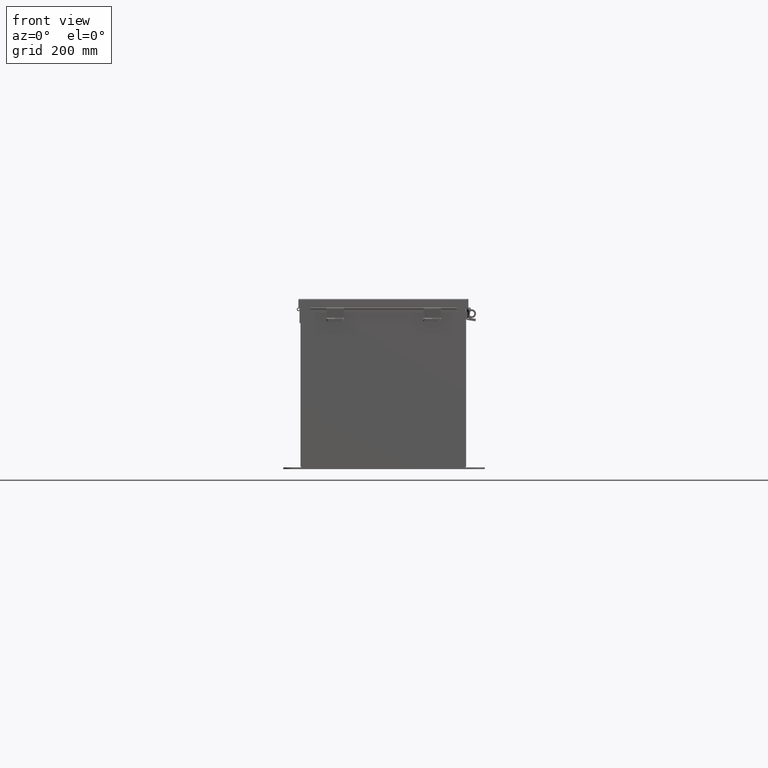
[diagram: clean part render]
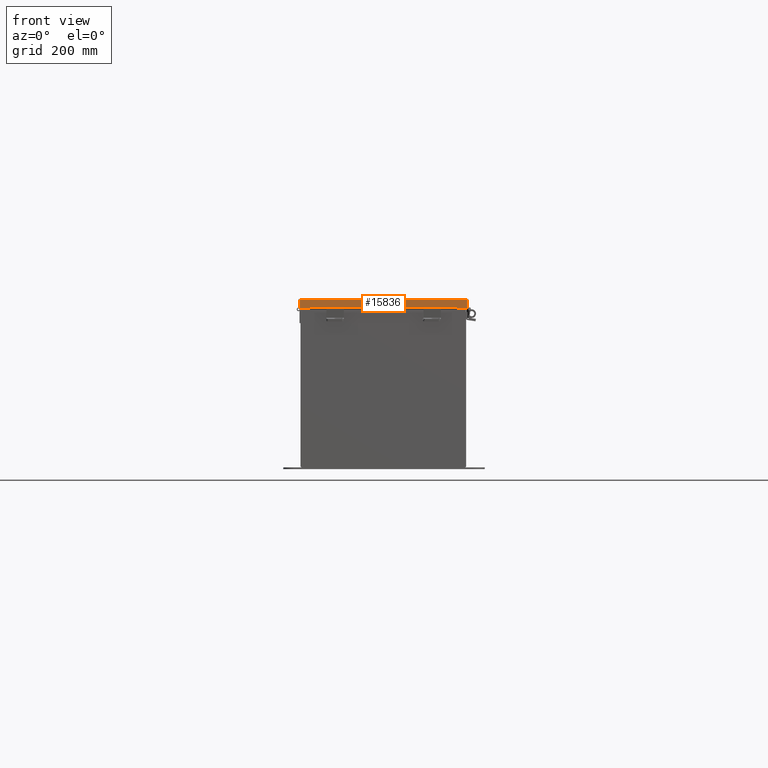
[diagram: same view with one face highlighted and labeled with its STEP entity id]
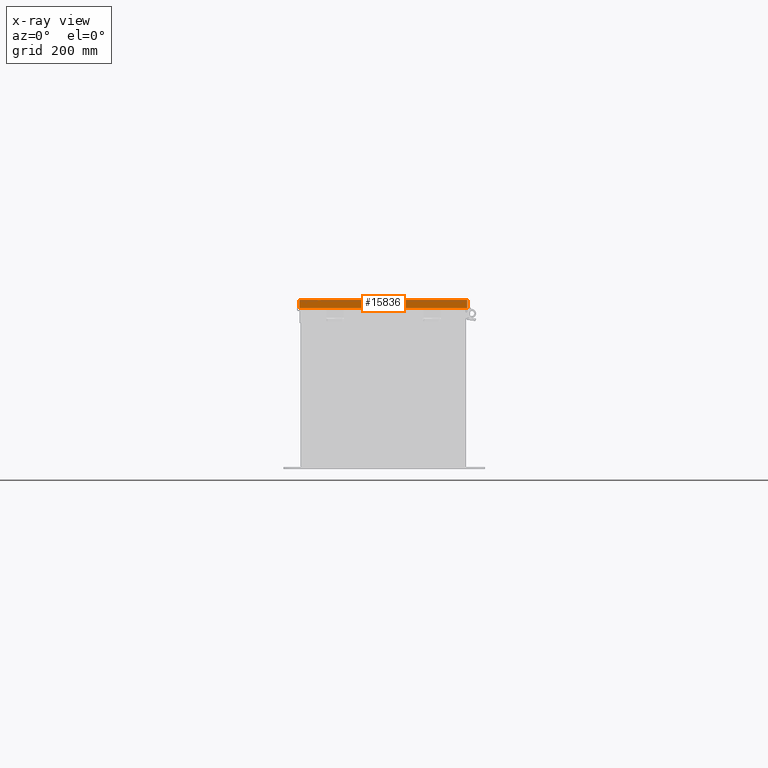
[diagram: x-ray of the same camera — body ghosted, the highlighted face saturated]
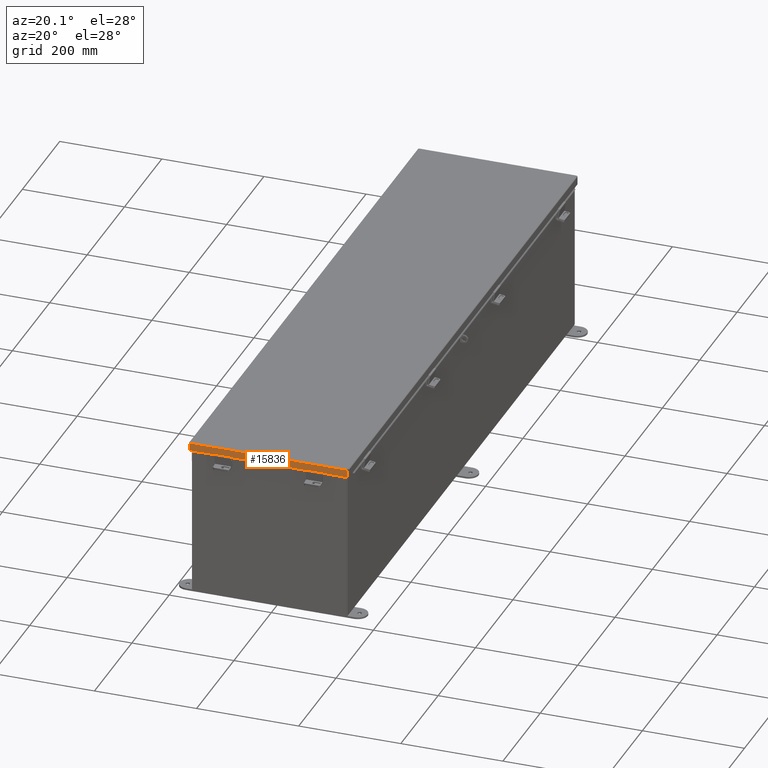
[diagram: same view with one face highlighted and labeled with its STEP entity id]
A machine part, front view. The second image highlights one B-rep face of the part: STEP entity #15836.
The next image is the same camera in x-ray: the body ghosted, the highlighted face saturated — about 0% of this face is hidden behind the body in this view.
A second angle (auxiliary view) of the same face is appended — the face is thin or edge-on in the first view.
In plain terms, the highlighted planar face has unit normal (0, 1, -0).
Its self-contained STEP definition (entity closure, byte-faithful):
#1164 = LINE ( 'NONE', #2461, #13535 ) ;
#1614 = CARTESIAN_POINT ( 'NONE',  ( -6.156250000000019500, -24.15625000000000000, 0.01299999999999792100 ) ) ;
#1997 = CARTESIAN_POINT ( 'NONE',  ( -6.074478932188158700, -24.15625000000000000, 0.01299999999999792100 ) ) ;
#2048 = CARTESIAN_POINT ( 'NONE',  ( 5.324478932188159600, -24.15625000000000000, 0.5967115427318804300 ) ) ;
#2461 = CARTESIAN_POINT ( 'NONE',  ( 6.074478932188163100, -24.15625000000000000, 0.0000000000000000000 ) ) ;
#3398 = DIRECTION ( 'NONE',  ( -2.189427245366025900E-030, 1.000000000000000000, 0.0000000000000000000 ) ) ;
#4485 = DIRECTION ( 'NONE',  ( -1.000000000000000000, 2.041515825637060300E-030, -0.0000000000000000000 ) ) ;
#4904 = EDGE_CURVE ( 'NONE', #22072, #36351, #10363, .T. ) ;
#6211 = ORIENTED_EDGE ( 'NONE', *, *, #16837, .T. ) ;
#7456 = DIRECTION ( 'NONE',  ( 0.0000000000000000000, -2.803970088048592400E-013, -1.000000000000000000 ) ) ;
#7561 = CARTESIAN_POINT ( 'NONE',  ( -5.324478932188156000, -24.15625000000000400, 0.6122999999999982900 ) ) ;
#8197 = EDGE_CURVE ( 'NONE', #36351, #9181, #29160, .T. ) ;
#8655 = EDGE_CURVE ( 'NONE', #22072, #25981, #29131, .T. ) ;
#9181 = VERTEX_POINT ( 'NONE', #2048 ) ;
#10096 = CARTESIAN_POINT ( 'NONE',  ( 6.074478932188163100, -24.15625000000000000, 0.01299999999999792100 ) ) ;
#10363 = LINE ( 'NONE', #7561, #31830 ) ;
#10523 = DIRECTION ( 'NONE',  ( -1.000000000000000000, 2.044213024013791200E-030, 5.546899479522196600E-018 ) ) ;
#10625 = CARTESIAN_POINT ( 'NONE',  ( 5.324478932188159600, -24.15625000000001100, 0.5967115427318804300 ) ) ;
#10678 = CARTESIAN_POINT ( 'NONE',  ( 3.201384367575308500E-018, -24.15625000000000000, 0.6122999999999982900 ) ) ;
#11739 = CARTESIAN_POINT ( 'NONE',  ( 0.0000000000000000000, -24.15625000000000000, -2.185478394931410600E-015 ) ) ;
#12472 = AXIS2_PLACEMENT_3D ( 'NONE', #11739, #3398, #23016 ) ;
#13159 = VERTEX_POINT ( 'NONE', #1997 ) ;
#13279 = EDGE_CURVE ( 'NONE', #15872, #23003, #31214, .T. ) ;
#13363 = ORIENTED_EDGE ( 'NONE', *, *, #15689, .F. ) ;
#13453 = VECTOR ( 'NONE', #18802, 39.37007874015748100 ) ;
#13535 = VECTOR ( 'NONE', #24917, 39.37007874015748100 ) ;
#13652 = CARTESIAN_POINT ( 'NONE',  ( -5.324478932188156000, -24.15625000000000000, 0.5967115427318782100 ) ) ;
#14889 = CARTESIAN_POINT ( 'NONE',  ( 5.324478932188158700, -24.15625000000000000, 0.6123000000000005100 ) ) ;
#14934 = VERTEX_POINT ( 'NONE', #10096 ) ;
#14939 = EDGE_CURVE ( 'NONE', #14934, #13159, #35995, .T. ) ;
#15058 = CARTESIAN_POINT ( 'NONE',  ( -6.074478932188158700, -24.15625000000000000, 0.0000000000000000000 ) ) ;
#15689 = EDGE_CURVE ( 'NONE', #9181, #23003, #28009, .T. ) ;
#15836 = ADVANCED_FACE ( 'NONE', ( #23665 ), #28487, .F. ) ;
#15872 = VERTEX_POINT ( 'NONE', #17494 ) ;
#16715 = VECTOR ( 'NONE', #34748, 39.37007874015748100 ) ;
#16837 = EDGE_CURVE ( 'NONE', #14934, #15872, #1164, .T. ) ;
#17338 = ORIENTED_EDGE ( 'NONE', *, *, #4904, .F. ) ;
#17494 = CARTESIAN_POINT ( 'NONE',  ( 6.074478932188163100, -24.15625000000000000, 0.6123000000000005100 ) ) ;
#18802 = DIRECTION ( 'NONE',  ( 1.000000000000000000, -2.041515825637060300E-030, -0.0000000000000000000 ) ) ;
#19041 = CARTESIAN_POINT ( 'NONE',  ( -5.324478932188156900, -24.15625000000001100, 0.5967115427318782100 ) ) ;
#19360 = ORIENTED_EDGE ( 'NONE', *, *, #13279, .T. ) ;
#19407 = DIRECTION ( 'NONE',  ( -1.000000000000000000, 2.044213024013791200E-030, 5.546899479522196600E-018 ) ) ;
#19719 = VECTOR ( 'NONE', #33066, 39.37007874015748100 ) ;
#20009 = EDGE_CURVE ( 'NONE', #13159, #25981, #24214, .T. ) ;
#20837 = VECTOR ( 'NONE', #10523, 39.37007874015748100 ) ;
#22072 = VERTEX_POINT ( 'NONE', #35513 ) ;
#23003 = VERTEX_POINT ( 'NONE', #14889 ) ;
#23016 = DIRECTION ( 'NONE',  ( 0.0000000000000000000, 0.0000000000000000000, 1.000000000000000000 ) ) ;
#23665 = FACE_OUTER_BOUND ( 'NONE', #30240, .T. ) ;
#23800 = VECTOR ( 'NONE', #19407, 39.37007874015748100 ) ;
#24214 = LINE ( 'NONE', #15058, #16715 ) ;
#24917 = DIRECTION ( 'NONE',  ( 0.0000000000000000000, 0.0000000000000000000, 1.000000000000000000 ) ) ;
#25981 = VERTEX_POINT ( 'NONE', #30359 ) ;
#27714 = CARTESIAN_POINT ( 'NONE',  ( 3.201384367575308500E-018, -24.15625000000000000, 0.6122999999999982900 ) ) ;
#27941 = ORIENTED_EDGE ( 'NONE', *, *, #8197, .F. ) ;
#28009 = LINE ( 'NONE', #10625, #19719 ) ;
#28487 = PLANE ( 'NONE',  #12472 ) ;
#28496 = VECTOR ( 'NONE', #4485, 39.37007874015748100 ) ;
#29131 = LINE ( 'NONE', #10678, #20837 ) ;
#29160 = LINE ( 'NONE', #19041, #13453 ) ;
#30240 = EDGE_LOOP ( 'NONE', ( #17338, #35405, #32326, #30447, #6211, #19360, #13363, #27941 ) ) ;
#30359 = CARTESIAN_POINT ( 'NONE',  ( -6.074478932188158700, -24.15625000000000000, 0.6123000000000005100 ) ) ;
#30447 = ORIENTED_EDGE ( 'NONE', *, *, #14939, .F. ) ;
#31214 = LINE ( 'NONE', #27714, #23800 ) ;
#31830 = VECTOR ( 'NONE', #7456, 39.37007874015748100 ) ;
#32326 = ORIENTED_EDGE ( 'NONE', *, *, #20009, .F. ) ;
#33066 = DIRECTION ( 'NONE',  ( 0.0000000000000000000, 2.803970088048530800E-013, 1.000000000000000000 ) ) ;
#34748 = DIRECTION ( 'NONE',  ( -0.0000000000000000000, -0.0000000000000000000, 1.000000000000000000 ) ) ;
#35405 = ORIENTED_EDGE ( 'NONE', *, *, #8655, .T. ) ;
#35513 = CARTESIAN_POINT ( 'NONE',  ( -5.324478932188156000, -24.15625000000000000, 0.6123000000000005100 ) ) ;
#35995 = LINE ( 'NONE', #1614, #28496 ) ;
#36351 = VERTEX_POINT ( 'NONE', #13652 ) ;